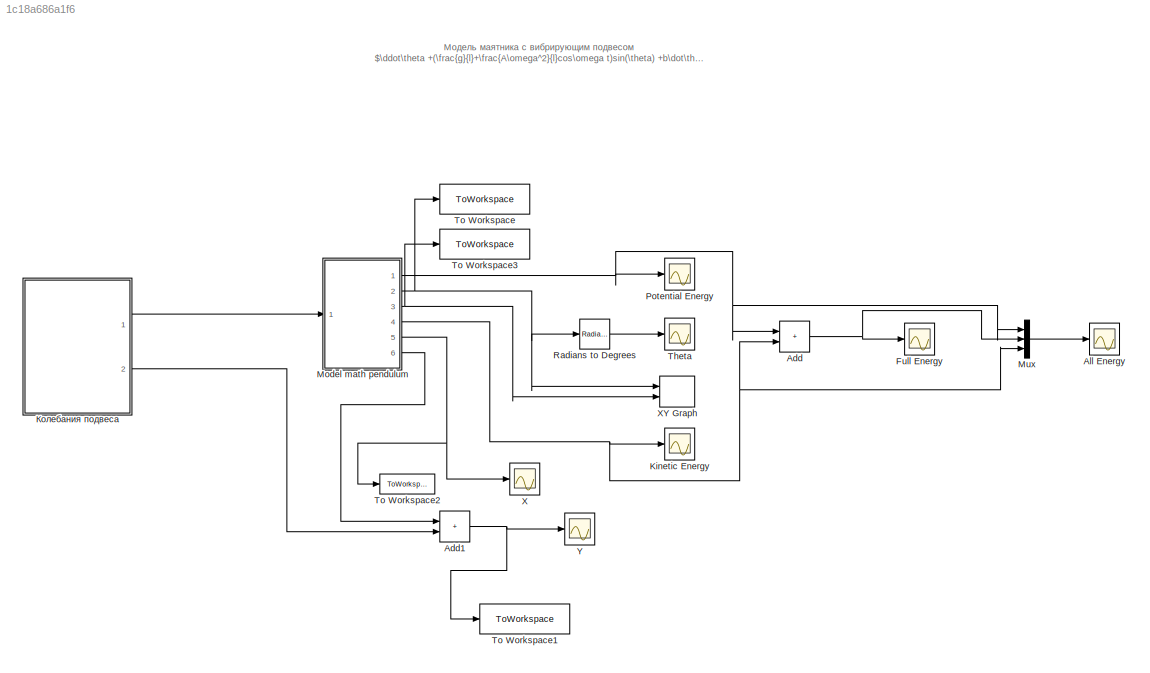
MODEL slx_1c18a686a1f6
KIND model
CONFIG AbsTol = auto
CONFIG EnableMultiTasking = off
CONFIG FixedStep = auto
CONFIG MaxStep = 0.05
CONFIG MinStep = auto
CONFIG RelTol = 1e-3
CONFIG SampleTimeConstraint = Unconstrained
CONFIG SolverName = VariableStepAuto
CONFIG StartTime = 0.0
CONFIG StopTime = 5
BLOCK [Sum] Add
  IconShape = rectangular
  Ports = [2, 1]
BLOCK [Sum] Add1
  IconShape = rectangular
  Ports = [2, 1]
BLOCK [Scope] All Energy
  Floating = off
  NumInputPorts = 1
  Ports = [1]
  ScopeSpecificationString = Simulink.scopes.TimeScopeBlockCfg('CurrentConfiguration', extmgr.ConfigurationSet(extmgr.Configuration('Core','General UI',true),extmgr.Configuration('Core','Source UI',true),extmgr.Configuration('Sources','WiredSimulink',true,'DataLoggingVariableName','ScopeData1'),extmgr.Configuration('Visuals','Time Domain',true,'SerializedDisplays',{struct('MinYLimReal','-1.94617','MaxYLimReal','17.51555','YLa...<+1414ch>
BLOCK [Scope] Full Energy
  Floating = off
  NumInputPorts = 1
  Ports = [1]
  ScopeSpecificationString = Simulink.scopes.TimeScopeBlockCfg('CurrentConfiguration', extmgr.ConfigurationSet(extmgr.Configuration('Core','General UI',true),extmgr.Configuration('Core','Source UI',true),extmgr.Configuration('Sources','WiredSimulink',true,'DataLoggingVariableName','ScopeData2'),extmgr.Configuration('Visuals','Time Domain',true,'SerializedDisplays',{struct('MinYLimReal','-0.16406','MaxYLimReal','1.47706','YLab...<+1362ch>
BLOCK [Scope] Kinetic Energy
  Floating = off
  NumInputPorts = 1
  Ports = [1]
  ScopeSpecificationString = Simulink.scopes.TimeScopeBlockCfg('CurrentConfiguration', extmgr.ConfigurationSet(extmgr.Configuration('Core','General UI',true),extmgr.Configuration('Core','Source UI',true),extmgr.Configuration('Sources','WiredSimulink',true,'DataLoggingVariableName','ScopeData3'),extmgr.Configuration('Visuals','Time Domain',true,'SerializedDisplays',{struct('MinYLimReal','-1.94066','MaxYLimReal','17.4659','YLab...<+1380ch>
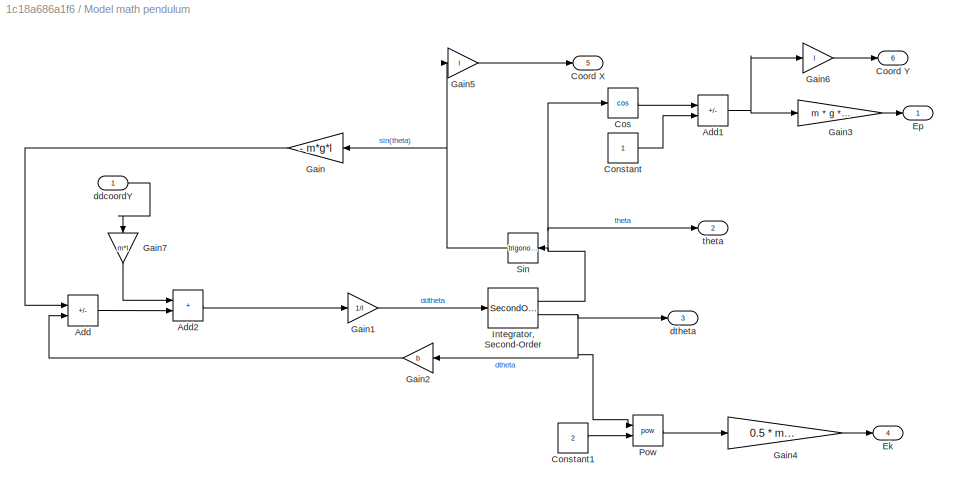
BLOCK [SubSystem] Model math pendulum
  Ports = [1, 6]
  RequestExecContextInheritance = off
BLOCK [Sum] Model math pendulum/Add
  IconShape = rectangular
  Inputs = +-
  Ports = [2, 1]
BLOCK [Sum] Model math pendulum/Add1
  IconShape = rectangular
  Inputs = -+
  Ports = [2, 1]
BLOCK [Sum] Model math pendulum/Add2
  IconShape = rectangular
  Ports = [2, 1]
BLOCK [Constant] Model math pendulum/Constant
BLOCK [Constant] Model math pendulum/Constant1
  Value = 2
BLOCK [Outport] Model math pendulum/Coord X
  Port = 5
BLOCK [Outport] Model math pendulum/Coord Y
  Port = 6
BLOCK [Trigonometry] Model math pendulum/Cos
  Operator = cos
  Ports = [1, 1]
BLOCK [Outport] Model math pendulum/Ek
  Port = 4
BLOCK [Outport] Model math pendulum/Ep
BLOCK [Gain] Model math pendulum/Gain
  Gain = - m*g*l
  NameLocation = top
BLOCK [Gain] Model math pendulum/Gain1
  Gain = 1/I
BLOCK [Gain] Model math pendulum/Gain2
  Gain = b
  NameLocation = top
BLOCK [Gain] Model math pendulum/Gain3
  Gain = m * g * l
BLOCK [Gain] Model math pendulum/Gain4
  Gain = 0.5 * m / (l^2)
BLOCK [Gain] Model math pendulum/Gain5
  Gain = l
BLOCK [Gain] Model math pendulum/Gain6
  Gain = l
BLOCK [Gain] Model math pendulum/Gain7
  Gain = m*l
  NameLocation = left
BLOCK [SecondOrderIntegrator] Model math pendulum/Integrator, Second-Order
  ICX = deg2rad(start_angle_deg)
  Ports = [1, 2]
BLOCK [Math] Model math pendulum/Pow
  Operator = pow
  Ports = [2, 1]
  RndMeth = Zero
  SignedPower = on
BLOCK [Trigonometry] Model math pendulum/Sin
  NameLocation = top
  Ports = [1, 1]
BLOCK [Inport] Model math pendulum/ddcoordY
BLOCK [Outport] Model math pendulum/dtheta
  Port = 3
BLOCK [Outport] Model math pendulum/theta
  Port = 2
BLOCK [Mux] Mux
  DisplayOption = bar
  Inputs = 3
  Ports = [3, 1]
BLOCK [Scope] Potential Energy
  Floating = off
  NumInputPorts = 1
  Ports = [1]
  ScopeSpecificationString = Simulink.scopes.TimeScopeBlockCfg('CurrentConfiguration', extmgr.ConfigurationSet(extmgr.Configuration('Core','General UI',true),extmgr.Configuration('Core','Source UI',true),extmgr.Configuration('Sources','WiredSimulink',true,'DataLoggingVariableName','ScopeData4'),extmgr.Configuration('Visuals','Time Domain',true,'SerializedDisplays',{struct('MinYLimReal','-1.84127','MaxYLimReal','16.57263','YLa...<+1384ch>
BLOCK [Reference] Radians to Degrees  REF=simulink_extras/Transformations/Radians
to Degrees
  Ports = [1, 1]
  SourceBlock = simulink_extras/Transformations/Radians\nto Degrees
  SourceProductBaseCode = SL
  SourceType = RadiansToDegrees
BLOCK [Scope] Theta
  Floating = off
  NumInputPorts = 1
  Ports = [1]
  ScopeSpecificationString = Simulink.scopes.TimeScopeBlockCfg('CurrentConfiguration', extmgr.ConfigurationSet(extmgr.Configuration('Core','General UI',true),extmgr.Configuration('Core','Source UI',true),extmgr.Configuration('Sources','WiredSimulink',true,'DataLoggingVariableName','ScopeData5'),extmgr.Configuration('Visuals','Time Domain',true,'SerializedDisplays',{struct('MinYLimReal','-150.25288','MaxYLimReal','150.16448','...<+1391ch>
BLOCK [ToWorkspace] To Workspace
  FixptAsFi = on
  MaxDataPoints = inf
  Ports = [1]
  SampleTime = -1
  Save2DSignal = 2-D array (concatenate along first dimension)
  VariableName = theta
BLOCK [ToWorkspace] To Workspace1
  FixptAsFi = on
  MaxDataPoints = inf
  Ports = [1]
  SampleTime = -1
  Save2DSignal = 2-D array (concatenate along first dimension)
  VariableName = coordY
BLOCK [ToWorkspace] To Workspace2
  FixptAsFi = on
  MaxDataPoints = inf
  Ports = [1]
  SampleTime = -1
  Save2DSignal = 2-D array (concatenate along first dimension)
  VariableName = coordX
BLOCK [ToWorkspace] To Workspace3
  FixptAsFi = on
  MaxDataPoints = inf
  Ports = [1]
  SampleTime = -1
  Save2DSignal = 2-D array (concatenate along first dimension)
  VariableName = dtheta
BLOCK [Scope] X
  Floating = off
  NumInputPorts = 1
  Ports = [1]
  ScopeSpecificationString = Simulink.scopes.TimeScopeBlockCfg('CurrentConfiguration', extmgr.ConfigurationSet(extmgr.Configuration('Core','General UI',true),extmgr.Configuration('Core','Source UI',true),extmgr.Configuration('Sources','WiredSimulink',true,'DataLoggingVariableName','ScopeData6'),extmgr.Configuration('Visuals','Time Domain',true,'SerializedDisplays',{struct('MinYLimReal','-0.40743','MaxYLimReal','0.60083','YLab...<+1380ch>
BLOCK [Record] XY Graph
  CompatibilityTag = XY
  FileSettingsInternal = {"entries":[{"content":{"excelSettings":{"content":{},"type":"Streamout.ExcelSettings"}},"type":"Streamout.FileSettingStorage","uuid":"75ce60ae-1aaa-4546-8ea2-1419d0a5cab1"}],"packageUris":["http://schema.mathworks.com/mf0/streamout_blocks/R2020a"],"version":"1.0"}
  Layout = [1 1]
  Ports = [2]
  SignalsInternal = {"entries":[{"content":{"signals":[{"content":{"blockPath":["kapitsa_pendulum/XY Graph"],"channel":[],"dimensions":[1],"domain":"kapitsa_pendulum/XY Graph","lineColor":"#a2142f","plots":[1],"port":1,"sid":[""],"signalID":1275,"signalName":"Model math pendulum:2"},"type":"RecordBlkView.Signal","uuid":"31c1e4ce-d13d-4d3d-a56a-d89802a88d0b"},{"content":{"blockPath":["kapitsa_pendulum/XY Graph"],"chan...<+423ch>
  VisualizationBindings = {"xyplotplugin":{"info":[{"series":[{"bindingParametersList":[{"parameter":"X-Axis","signalID":1275,"signalName":"Model math pendulum:2"},{"parameter":"Y-Axis","signalID":1279,"signalName":"Model math pendulum:3"}],"seriesID":22332}],"subplotID":1}]}}
BLOCK [Scope] Y
  Floating = off
  NumInputPorts = 1
  Ports = [1]
  ScopeSpecificationString = Simulink.scopes.TimeScopeBlockCfg('CurrentConfiguration', extmgr.ConfigurationSet(extmgr.Configuration('Core','General UI',true),extmgr.Configuration('Core','Source UI',true),extmgr.Configuration('Sources','WiredSimulink',true),extmgr.Configuration('Visuals','Time Domain',true,'SerializedDisplays',{struct('MinYLimReal','-2.72098','MaxYLimReal','20.99986','YLabelReal','','MinYLimMag','0.00000','Max...<+1347ch>
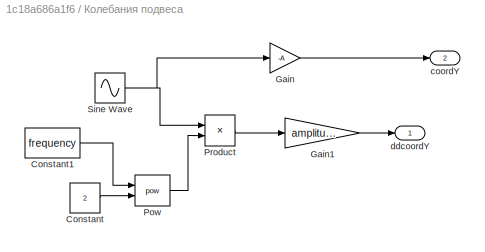
BLOCK [SubSystem] Колебания подвеса
  Ports = [0, 2]
  RequestExecContextInheritance = off
BLOCK [Constant] Колебания подвеса/Constant
  Value = 2
BLOCK [Constant] Колебания подвеса/Constant1
  Value = frequency
BLOCK [Gain] Колебания подвеса/Gain
  Gain = -A
BLOCK [Gain] Колебания подвеса/Gain1
  Gain = amplitude
BLOCK [Math] Колебания подвеса/Pow
  Operator = pow
  Ports = [2, 1]
  RndMeth = Zero
  SignedPower = on
BLOCK [Product] Колебания подвеса/Product
  Ports = [2, 1]
BLOCK [Sin] Колебания подвеса/Sine Wave
  Frequency = w*6.28
  Phase = 3.14/2
  Ports = [0, 1]
  SampleTime = 0
BLOCK [Outport] Колебания подвеса/coordY
  Port = 2
BLOCK [Outport] Колебания подвеса/ddcoordY
ANNOTATION (root): Модель маятника с вибрирующим подвесом $\ddot\theta +(\frac{g}{l}+\frac{A\omega^2}{l}cos\omega t)sin(\theta) +b\dot\theta=0$
NET Add1:1 -> To Workspace1:1, Y:1
NET Add:1 -> Full Energy:1, Mux:2
NET Model math pendulum/Add1:1 -> Model math pendulum/Gain3:1, Model math pendulum/Gain6:1
LINE Model math pendulum/Add2:1 -> Model math pendulum/Gain1:1
LINE Model math pendulum/Add:1 -> Model math pendulum/Add2:2
LINE Model math pendulum/Constant1:1 -> Model math pendulum/Pow:2
LINE Model math pendulum/Constant:1 -> Model math pendulum/Add1:2
LINE Model math pendulum/Cos:1 -> Model math pendulum/Add1:1
LINE Model math pendulum/Gain1:1 -> Model math pendulum/Integrator, Second-Order:1
LINE Model math pendulum/Gain2:1 -> Model math pendulum/Add:2
LINE Model math pendulum/Gain3:1 -> Model math pendulum/Ep:1
LINE Model math pendulum/Gain4:1 -> Model math pendulum/Ek:1
LINE Model math pendulum/Gain5:1 -> Model math pendulum/Coord X:1
LINE Model math pendulum/Gain6:1 -> Model math pendulum/Coord Y:1
LINE Model math pendulum/Gain7:1 -> Model math pendulum/Add2:1
LINE Model math pendulum/Gain:1 -> Model math pendulum/Add:1
NET Model math pendulum/Integrator, Second-Order:1 -> Model math pendulum/Cos:1, Model math pendulum/Sin:1, Model math pendulum/theta:1
NET Model math pendulum/Integrator, Second-Order:2 -> Model math pendulum/Gain2:1, Model math pendulum/Pow:1, Model math pendulum/dtheta:1
LINE Model math pendulum/Pow:1 -> Model math pendulum/Gain4:1
NET Model math pendulum/Sin:1 -> Model math pendulum/Gain5:1, Model math pendulum/Gain:1
LINE Model math pendulum/ddcoordY:1 -> Model math pendulum/Gain7:1
NET Model math pendulum:1 -> Add:1, Mux:1, Potential Energy:1
NET Model math pendulum:2 -> Radians to Degrees:1, To Workspace:1, XY Graph:1
NET Model math pendulum:3 -> To Workspace3:1, XY Graph:2
NET Model math pendulum:4 -> Add:2, Kinetic Energy:1, Mux:3
NET Model math pendulum:5 -> To Workspace2:1, X:1
LINE Model math pendulum:6 -> Add1:1
LINE Mux:1 -> All Energy:1
LINE Radians to Degrees:1 -> Theta:1
LINE Колебания подвеса/Constant1:1 -> Колебания подвеса/Pow:1
LINE Колебания подвеса/Constant:1 -> Колебания подвеса/Pow:2
LINE Колебания подвеса/Gain1:1 -> Колебания подвеса/ddcoordY:1
LINE Колебания подвеса/Gain:1 -> Колебания подвеса/coordY:1
LINE Колебания подвеса/Pow:1 -> Колебания подвеса/Product:2
LINE Колебания подвеса/Product:1 -> Колебания подвеса/Gain1:1
NET Колебания подвеса/Sine Wave:1 -> Колебания подвеса/Gain:1, Колебания подвеса/Product:1
LINE Колебания подвеса:1 -> Model math pendulum:1
LINE Колебания подвеса:2 -> Add1:2
note: NET lines group one-source signal fan-out (src -> all destinations, sorted); 1:1 wires keep LINE
